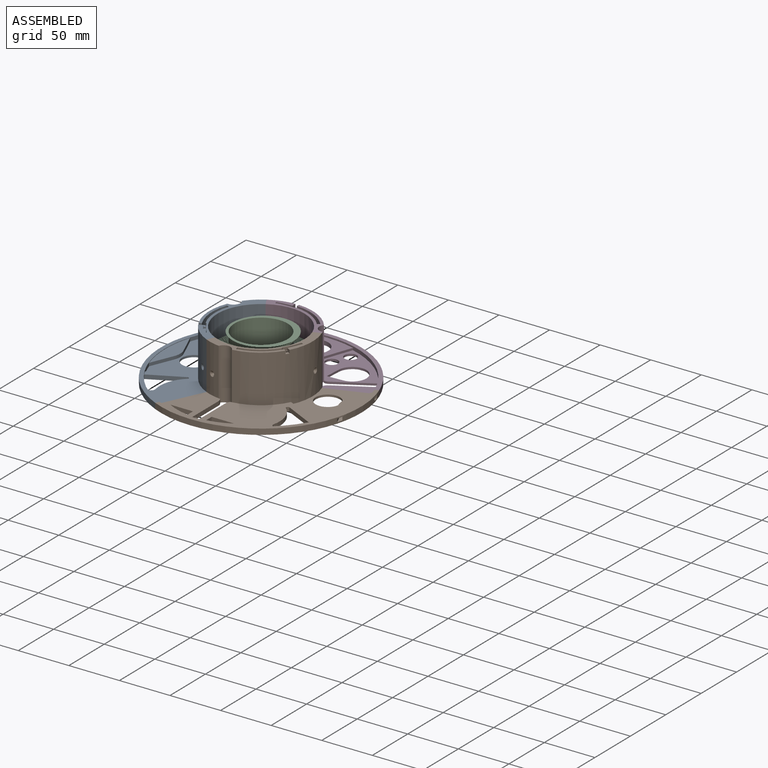
[diagram: assembled view]
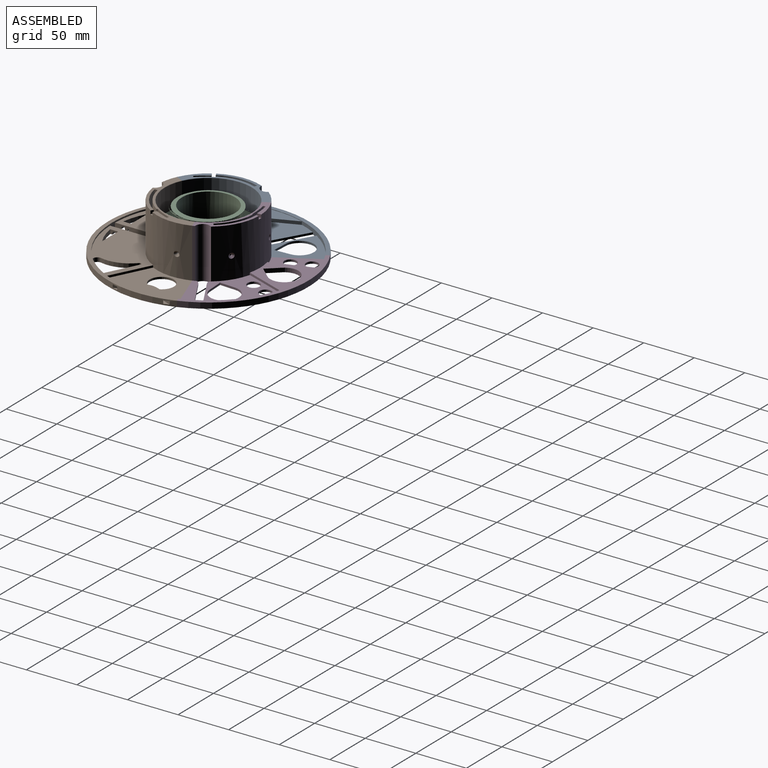
[diagram: assembled view, second angle]
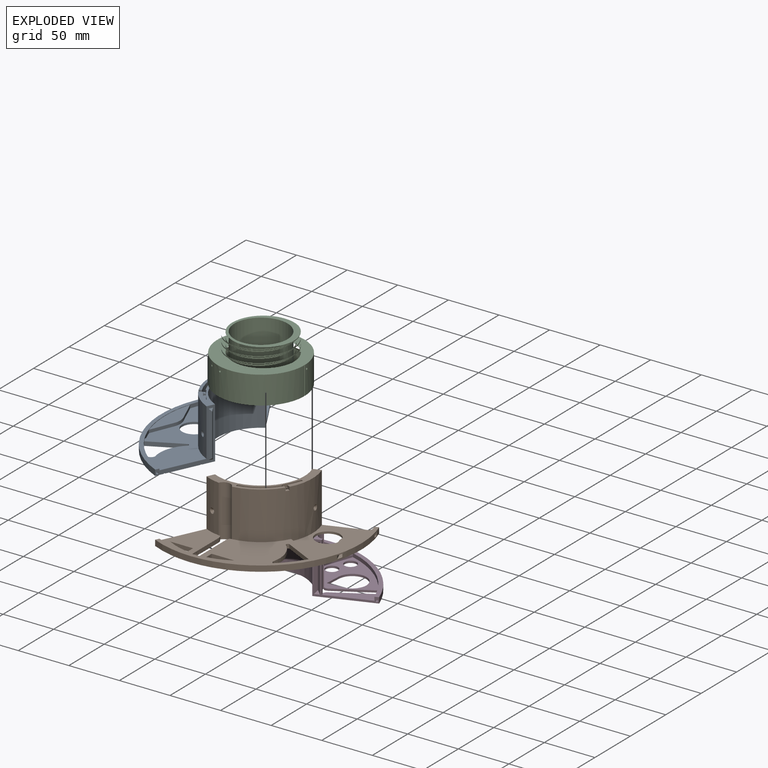
[diagram: exploded view]
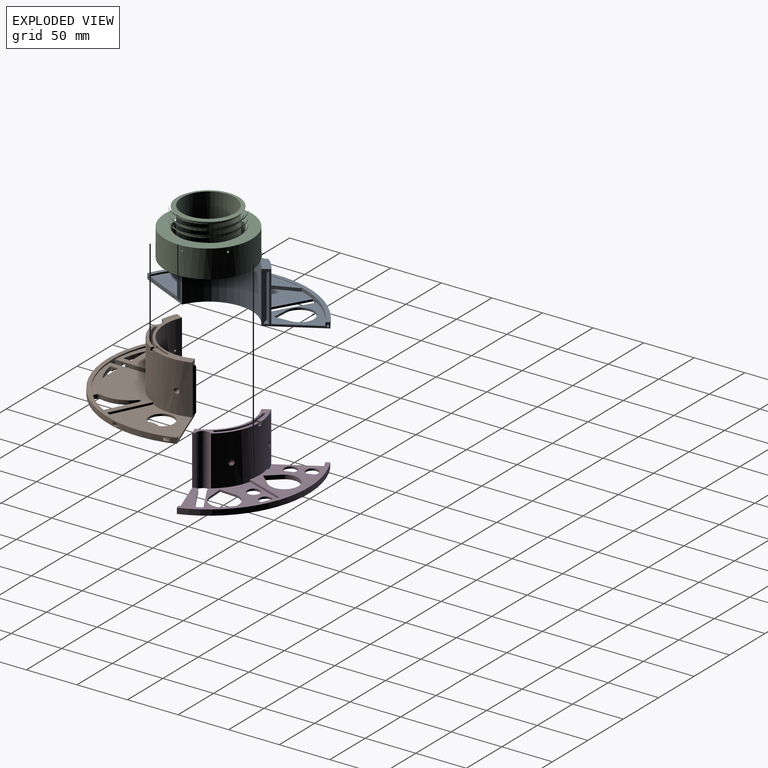
[diagram: exploded view, second angle]
ASSEMBLY  parts=4 mates=3
PART A: 93 faces, bbox 81.1x175.5x51 mm
  f0: plane 51x48.58mm, normal (0.87,0.5,0), area 289.8mm2, adj f2,f3,f5,f6,f7,f36,f37,f52
  f1: plane 51x50.84mm, normal (0.91,-0.42,0), area 419.7mm2, adj f2,f3,f4,f5,f6,f7,f8,f9
  f2: plane 90.39x32.78mm, normal (0,0,1), area 599.8mm2, adj f0,f1,f7,f38,f47,f53,f54,f55
  f3: plane 175.46x80.87mm, normal (0,0,-1), area 6143.5mm2, adj f0,f1,f5,f6,f11,f12,f16,f17
  f4: plane 30x22.11mm, normal (0,0,-1), area 451.7mm2, adj f1,f9,f10,f13,f14,f15
  f5: cylinder r=99mm len=175.46mm, axis (0,0,-1), area 1173.7mm2, adj f0,f1,f3,f37,f63,f65,f66,f68
  f6: cylinder r=42.9mm len=76.03mm, axis (0,0,-1), area 4735.7mm2, adj f0,f1,f3,f7,f71,f72
  f7: torus R=43.3mm, axis (0,0,1), area 40.7mm2, adj f0,f1,f2,f6
  f8: plane 32x23.58mm, normal (0,0,-1), area 60.1mm2, adj f1,f9,f10,f11,f12,f13,f14,f15
  f9: plane 6.12x2mm, normal (0,-1,0), area 12.2mm2, adj f1,f4,f8,f13
  f10: plane 20.11x2mm, normal (0,1,0), area 40.2mm2, adj f1,f4,f8,f15
  f11: plane 20.57x2mm, normal (0,-1,0), area 41.1mm2, adj f1,f3,f8,f16
  f12: plane 5.65x2mm, normal (0,1,0), area 11.3mm2, adj f1,f3,f8,f18
  f13: cylinder r=2mm len=2mm, axis (0,0,-1), area 6.3mm2, adj f4,f8,f9,f14
  f14: plane 26x2mm, normal (-1,0,0), area 52mm2, adj f4,f8,f13,f15
  f15: cylinder r=2mm len=2mm, axis (0,0,-1), area 6.3mm2, adj f4,f8,f10,f14
  f16: cylinder r=3mm len=3mm, axis (0,0,-1), area 9.4mm2, adj f3,f8,f11,f17
  f17: plane 26x2mm, normal (1,0,0), area 52mm2, adj f3,f8,f16,f18
  f18: cylinder r=3mm len=3mm, axis (0,0,-1), area 9.4mm2, adj f3,f8,f12,f17
  f19: cylinder r=17mm len=13.01mm, axis (0,0,-1), area 41.4mm2, adj f28,f29,f30,f32
  f20: plane 32.5x2.56mm, normal (-0.41,0.91,0), area 91mm2, adj f21,f26,f60,f61
  f21: plane 36.09x6.73mm, normal (0,0,1), area 100.6mm2, adj f20,f59,f60,f61
  f22: cylinder r=48.2mm len=20mm, axis (0,0,1), area 67.3mm2, adj f23,f24,f27,f58
  f23: plane 4.82x4.65mm, normal (0,0,1), area 12mm2, adj f22,f24,f57,f58
  f24: plane 20x3.27mm, normal (0.47,-0.88,0), area 74mm2, adj f22,f23,f26,f57
  f25: plane 13.18x10.58mm, normal (0,0,1), area 32.8mm2, adj f54,f55,f57,f58
  f26: plane 4.74x4.16mm, normal (0,0,1), area 9.6mm2, adj f20,f24,f56,f60,f61
  f27: plane 4.4x4.15mm, normal (0,0,1), area 9.7mm2, adj f22,f38,f58,f62
  f28: plane 22.49x9.32mm, normal (0.92,0.38,0), area 75.5mm2, adj f19,f29,f32,f36
  f29: plane 58x15.15mm, normal (0,0,1), area 518.3mm2, adj f19,f28,f30,f36
  f30: plane 22.49x9.32mm, normal (0.92,-0.38,0), area 75.5mm2, adj f19,f29,f32,f36
  f31: cylinder r=12mm len=24mm, axis (0,0,1), area 150.8mm2, adj f3,f32
  f32: plane 86.83x44.82mm, normal (0,0,1), area 2040.7mm2, adj f19,f28,f30,f31,f33,f34,f36,f38
  f33: plane 39.38x19.63mm, normal (-0.45,0.89,0), area 92.4mm2, adj f32,f35,f36,f38
  f34: cylinder r=6.76mm len=3.42mm, axis (0,0,1), area 9.2mm2, adj f3,f32,f43,f48
  f35: plane 63.47x63.34mm, normal (0,0,1), area 1608.6mm2, adj f1,f33,f36,f38,f39,f40,f41,f42
  f36: cylinder r=95mm len=168.37mm, axis (0,0,-1), area 555.7mm2, adj f0,f1,f3,f28,f29,f30,f32,f33
  f37: plane 175.46x58.85mm, normal (0,0,1), area 846.5mm2, adj f0,f1,f5,f36
  f38: cylinder r=51mm len=65.88mm, axis (0,0,-1), area 3726.6mm2, adj f1,f2,f27,f32,f33,f35,f47,f58
  f39: plane 31.59x15.75mm, normal (0.45,-0.89,0), area 144.7mm2, adj f3,f35,f36,f40
  f40: cylinder r=1.6mm len=4.1mm, axis (0,0,1), area 18.8mm2, adj f3,f35,f39,f41
  f41: cylinder r=32mm len=30.75mm, axis (0,0,1), area 138.7mm2, adj f3,f35,f40,f42
  f42: cylinder r=4mm len=6.75mm, axis (0,0,1), area 41.8mm2, adj f3,f35,f36,f41
  f43: plane 34.59x19.97mm, normal (0.5,0.87,0), area 79.9mm2, adj f3,f32,f34,f36
  f44: plane 34.59x19.97mm, normal (-0.5,-0.87,0), area 79.9mm2, adj f3,f36,f45,f52
  f45: cylinder r=6.76mm len=4.43mm, axis (0,0,1), area 9.2mm2, adj f3,f44,f46,f52
  f46: cylinder r=51mm len=2mm, axis (0,0,1), area 3mm2, adj f3,f45,f47,f52
  f47: cylinder r=7mm len=51mm, axis (0,0,1), area 850mm2, adj f2,f3,f38,f46,f48,f53
  f48: cylinder r=51mm len=2mm, axis (0,0,1), area 3mm2, adj f3,f32,f34,f47
  f49: plane 15.53x2mm, normal (-1,-0.05,0), area 31.1mm2, adj f3,f50,f51,f52
  f50: plane 15.53x2mm, normal (0.05,1,0), area 31.1mm2, adj f3,f49,f51,f52
  f51: cylinder r=14mm len=27.98mm, axis (0,0,1), area 129mm2, adj f3,f49,f50,f52
  f52: plane 54.97x52.65mm, normal (0,0,1), area 856.6mm2, adj f0,f36,f44,f45,f46,f49,f50,f51
  f53: cylinder r=51mm len=49mm, axis (0,0,-1), area 975mm2, adj f0,f2,f47,f52,f77,f78,f79,f80
  f54: plane 3.2x1.65mm, normal (-0.66,0.75,0), area 7mm2, adj f2,f25,f55,f57
  f55: cylinder r=90mm len=11.96mm, axis (0,0,1), area 47.8mm2, adj f2,f25,f54,f58
  f56: plane 3.2x1.25mm, normal (-0.34,-0.94,0), area 4.3mm2, adj f2,f26,f57,f60
  f57: cylinder r=78mm len=23.2mm, axis (0,0,1), area 118.7mm2, adj f2,f23,f24,f25,f54,f56,f58
  f58: plane 23.2x5.51mm, normal (-0.53,0.85,0), area 87.3mm2, adj f2,f22,f23,f25,f27,f38,f55,f57
  f59: plane 35.7x2.63mm, normal (-0.34,-0.94,0), area 100mm2, adj f2,f21,f60,f61
  f60: cylinder r=45.4mm len=35.96mm, axis (0,0,1), area 1251.7mm2, adj f2,f20,f21,f26,f56,f59
  f61: cylinder r=48.2mm len=39.11mm, axis (0,0,1), area 1332.2mm2, adj f2,f20,f21,f26,f59,f62
  f62: plane 3.2x2.47mm, normal (0.47,-0.88,0), area 9mm2, adj f2,f27,f38,f61
  f63: plane 23.38x9.68mm, normal (-0.92,0.38,0), area 81mm2, adj f5,f64,f69,f70
  f64: cylinder r=12.6mm len=9.64mm, axis (0,0,1), area 31.7mm2, adj f63,f65,f69,f70
  f65: plane 23.38x9.68mm, normal (-0.92,-0.38,0), area 81mm2, adj f5,f64,f69,f70
  f66: plane 19.28x7.99mm, normal (0.92,0.38,0), area 66.8mm2, adj f5,f67,f69,f70
  f67: cylinder r=9.2mm len=7.04mm, axis (0,0,1), area 23.1mm2, adj f66,f68,f69,f70
  f68: plane 19.28x7.99mm, normal (0.92,-0.38,0), area 66.8mm2, adj f5,f67,f69,f70
  f69: plane 56.41x12.09mm, normal (0,0,1), area 186.4mm2, adj f5,f63,f64,f65,f66,f67,f68
  f70: plane 56.41x12.09mm, normal (0,0,-1), area 186.4mm2, adj f5,f63,f64,f65,f66,f67,f68
  f71: cylinder r=1.05mm len=6.62mm, axis (-0.55,-0.83,0), area 42.9mm2, adj f6,f73,f74,f75,f76
  f72: cylinder r=1.05mm len=6.3mm, axis (0.66,-0.75,0), area 42.9mm2, adj f6,f77,f78,f79,f80
  f73: bspline ~2.74x2.62mm, area 6.5mm2, adj f38,f71,f74,f75
  f74: bspline ~3.08x2.62mm, area 6.5mm2, adj f38,f71,f73,f76
  f75: bspline ~2.74x2.62mm, area 6.5mm2, adj f38,f71,f73,f76
  f76: bspline ~3.08x2.62mm, area 6.5mm2, adj f38,f71,f74,f75
  f77: bspline ~3.02x2.62mm, area 6.5mm2, adj f53,f72,f78,f79
  f78: bspline ~2.91x2.62mm, area 6.5mm2, adj f53,f72,f77,f80
  f79: bspline ~3.02x2.62mm, area 6.5mm2, adj f53,f72,f77,f80
  f80: bspline ~2.91x2.62mm, area 6.5mm2, adj f53,f72,f78,f79
  f81: plane 46x2.85mm, normal (0.31,-0.95,0), area 131.4mm2, adj f1,f82,f83,f84
  f82: plane 46x2.78mm, normal (0.93,0.37,0), area 131.4mm2, adj f1,f81,f83,f84
  f83: plane 3.72x2.85mm, normal (0.64,-0.3,-0.71), area 6.4mm2, adj f1,f81,f82
  f84: plane 3.72x2.85mm, normal (0.64,-0.3,0.71), area 6.4mm2, adj f1,f81,f82
  f85: plane 46.85x3.51mm, normal (0.23,0.97,0), area 159.2mm2, adj f0,f86,f87,f88
  f86: plane 46.85x3.45mm, normal (0.96,-0.29,0), area 159.2mm2, adj f0,f85,f87,f88
  f87: plane 4.26x3.51mm, normal (0.61,0.35,0.71), area 9.2mm2, adj f0,f85,f86
  f88: plane 4.26x3.51mm, normal (0.61,0.35,-0.71), area 9.2mm2, adj f0,f85,f86
  f89: torus R=97mm, axis (0,0,1), area 62.8mm2, adj f0,f90
  f90: plane 2x1.62mm, normal (0.81,0.59,0), area 3.1mm2, adj f89
  f91: plane 2x1.72mm, normal (0.86,-0.51,0), area 3.1mm2, adj f92
  f92: torus R=97mm, axis (0,0,-1), area 62.8mm2, adj f1,f91
PART B: 109 faces, bbox 140.8x132.9x51 mm
  f0: plane 51x50.84mm, normal (-0.91,0.42,0), area 377.7mm2, adj f2,f3,f4,f5,f6,f7,f8,f9
  f1: plane 52.72x51mm, normal (-0.34,0.94,0), area 331.7mm2, adj f2,f4,f12,f20,f22,f23,f25,f26
  f2: cylinder r=42.9mm len=61.03mm, axis (0,0,-1), area 5114.9mm2, adj f0,f1,f12,f86,f87,f88
  f3: cylinder r=51mm len=46.9mm, axis (0,0,-1), area 723.8mm2, adj f0,f5,f17,f22,f89,f90,f91,f92
  f4: cylinder r=99mm len=140.84mm, axis (0,0,-1), area 1270.5mm2, adj f0,f1,f12,f25,f45,f47,f48,f50
  f5: plane 48.71x36.65mm, normal (0,0,1), area 1141.1mm2, adj f0,f3,f13,f14,f18,f26,f27,f36
  f6: plane 34.85x2mm, normal (0,1,0), area 69.7mm2, adj f0,f11,f12,f13
  f7: plane 17.08x2mm, normal (0,-1,0), area 34.2mm2, adj f0,f10,f12,f17
  f8: plane 19.25x2mm, normal (0,1,0), area 38.5mm2, adj f0,f10,f15,f27
  f9: plane 34.38x2mm, normal (0,-1,0), area 68.8mm2, adj f0,f11,f13,f15
  f10: plane 19.25x1mm, normal (0,0,-1), area 18.1mm2, adj f0,f7,f8,f17,f18,f27
  f11: plane 34.85x1mm, normal (0,0,-1), area 34.6mm2, adj f0,f6,f9,f13
  f12: plane 140.84x132.86mm, normal (0,0,-1), area 5511.7mm2, adj f0,f1,f2,f4,f6,f7,f13,f14
  f13: plane 39.94x4.1mm, normal (1,0,0), area 152.7mm2, adj f5,f6,f9,f11,f12,f15,f26,f27
  f14: plane 7.7x4.1mm, normal (-1,0,0), area 22.5mm2, adj f5,f12,f36,f37,f80,f81,f85
  f15: plane 34.38x30mm, normal (0,0,-1), area 820.2mm2, adj f0,f8,f9,f13,f27
  f16: cylinder r=51mm len=2.1mm, axis (0,0,1), area 3.2mm2, adj f17,f19,f40,f79
  f17: cylinder r=7mm len=51mm, axis (0,0,1), area 848.5mm2, adj f3,f7,f10,f12,f16,f18,f20,f22
  f18: cylinder r=51mm len=2.1mm, axis (0,0,1), area 3.2mm2, adj f5,f10,f17,f27
  f19: cylinder r=6.76mm len=4.25mm, axis (0,0,1), area 17.6mm2, adj f16,f24,f28,f40,f74,f79
  f20: cylinder r=51mm len=68.03mm, axis (0,0,-1), area 4347.8mm2, adj f1,f17,f22,f23,f39,f40,f58,f67
  f21: cylinder r=48.2mm len=35.7mm, axis (0,0,1), area 1332.2mm2, adj f22,f54,f56,f57,f66,f67
  f22: plane 72.55x68.03mm, normal (0,0,1), area 664.6mm2, adj f0,f1,f3,f17,f20,f21,f55,f56
  f23: plane 74.88x44.82mm, normal (0,0,1), area 1636.1mm2, adj f1,f20,f26,f38,f39,f41,f42,f43
  f24: plane 42.5x30mm, normal (0,0,-1), area 1271.9mm2, adj f19,f28,f70,f71,f72,f73,f74
  f25: plane 140.84x132.86mm, normal (0,0,1), area 914.2mm2, adj f0,f1,f4,f26
  f26: cylinder r=95mm len=135.15mm, axis (0,0,-1), area 456mm2, adj f0,f1,f5,f12,f13,f23,f25,f28
  f27: cylinder r=6.76mm len=4.25mm, axis (0,0,1), area 17.6mm2, adj f5,f8,f10,f13,f15,f18
  f28: plane 39.94x4.1mm, normal (-1,0,0), area 152.7mm2, adj f12,f19,f24,f26,f40,f69,f70,f79
  f29: plane 31.59x15.75mm, normal (-0.45,-0.89,0), area 144.7mm2, adj f12,f26,f30,f40
  f30: cylinder r=1.6mm len=4.1mm, axis (0,0,1), area 18.8mm2, adj f12,f29,f31,f40
  f31: cylinder r=32mm len=30.75mm, axis (0,0,1), area 138.7mm2, adj f12,f30,f32,f40
  f32: cylinder r=4mm len=6.75mm, axis (0,0,1), area 41.8mm2, adj f12,f26,f31,f40
  f33: plane 22.5x4.1mm, normal (0,-1,0), area 92.2mm2, adj f12,f34,f35,f40
  f34: plane 7.7x4.1mm, normal (1,0,0), area 22.5mm2, adj f12,f33,f35,f40,f82,f83,f84
  f35: cylinder r=63.7mm len=22.5mm, axis (0,0,1), area 98.1mm2, adj f12,f33,f34,f40
  f36: cylinder r=63.7mm len=22.5mm, axis (0,0,1), area 98.1mm2, adj f5,f12,f14,f37
  f37: plane 22.5x4.1mm, normal (0,-1,0), area 92.2mm2, adj f5,f12,f14,f36
  f38: cylinder r=12mm len=24mm, axis (0,0,1), area 150.8mm2, adj f12,f23
  f39: plane 39.38x19.63mm, normal (0.45,0.89,0), area 92.4mm2, adj f20,f23,f26,f40
  f40: plane 81.52x72.18mm, normal (0,0,1), area 2749.7mm2, adj f16,f19,f20,f26,f28,f29,f30,f31
  f41: plane 22.49x9.32mm, normal (-0.92,0.38,0), area 75.5mm2, adj f23,f26,f42,f44
  f42: cylinder r=17mm len=13.01mm, axis (0,0,-1), area 41.4mm2, adj f23,f41,f43,f44
  f43: plane 22.49x9.32mm, normal (-0.92,-0.38,0), area 75.5mm2, adj f23,f26,f42,f44
  f44: plane 58x15.15mm, normal (0,0,1), area 518.3mm2, adj f26,f41,f42,f43
  f45: plane 23.38x9.68mm, normal (0.92,-0.38,0), area 81mm2, adj f4,f46,f51,f52
  f46: cylinder r=12.6mm len=9.64mm, axis (0,0,1), area 31.7mm2, adj f45,f47,f51,f52
  f47: plane 23.38x9.68mm, normal (0.92,0.38,0), area 81mm2, adj f4,f46,f51,f52
  f48: plane 19.28x7.99mm, normal (-0.92,-0.38,0), area 66.8mm2, adj f4,f49,f51,f52
  f49: cylinder r=9.2mm len=7.04mm, axis (0,0,1), area 23.1mm2, adj f48,f50,f51,f52
  f50: plane 19.28x7.99mm, normal (-0.92,0.38,0), area 66.8mm2, adj f4,f49,f51,f52
  f51: plane 56.41x12.09mm, normal (0,0,1), area 186.4mm2, adj f4,f45,f46,f47,f48,f49,f50
  f52: plane 56.41x12.09mm, normal (0,0,-1), area 186.4mm2, adj f4,f45,f46,f47,f48,f49,f50
  f53: cylinder r=48.2mm len=20mm, axis (0,0,1), area 67.3mm2, adj f58,f60,f61,f68
  f54: plane 32.5x2.27mm, normal (-0.59,-0.81,0), area 91mm2, adj f21,f55,f57,f66
  f55: cylinder r=45.4mm len=35.7mm, axis (0,0,1), area 1251.7mm2, adj f22,f54,f56,f57,f65,f66
  f56: plane 35.7x2.76mm, normal (0.98,0.17,0), area 100mm2, adj f21,f22,f55,f57
  f57: plane 31.11x20.78mm, normal (0,0,1), area 100.6mm2, adj f21,f54,f55,f56
  f58: plane 23.2x5.73mm, normal (-0.47,-0.88,0), area 87.3mm2, adj f20,f22,f53,f59,f61,f62,f64,f68
  f59: cylinder r=78mm len=23.2mm, axis (0,0,1), area 118.7mm2, adj f22,f58,f60,f61,f63,f64,f65
  f60: plane 20x3.14mm, normal (0.53,0.85,0), area 74mm2, adj f53,f59,f61,f66
  f61: plane 4.82x4.65mm, normal (0,0,1), area 12mm2, adj f53,f58,f59,f60
  f62: cylinder r=90mm len=13.72mm, axis (0,0,1), area 47.8mm2, adj f22,f58,f63,f64
  f63: plane 3.2x2.09mm, normal (-0.32,-0.95,0), area 7mm2, adj f22,f59,f62,f64
  f64: plane 14.42x7.92mm, normal (0,0,1), area 32.8mm2, adj f58,f59,f62,f63
  f65: plane 3.2x1.31mm, normal (0.98,0.17,0), area 4.3mm2, adj f22,f55,f59,f66
  f66: plane 4.75x4.15mm, normal (0,0,1), area 9.6mm2, adj f21,f54,f55,f60,f65
  f67: plane 3.2x2.37mm, normal (0.53,0.85,0), area 9mm2, adj f20,f21,f22,f68
  f68: plane 4.4x4.15mm, normal (0,0,1), area 9.7mm2, adj f20,f53,f58,f67
  f69: plane 40.5x2mm, normal (0,1,0), area 81mm2, adj f12,f28,f78,f79
  f70: plane 40.5x2mm, normal (0,-1,0), area 81mm2, adj f24,f28,f71,f79
  f71: cylinder r=2mm len=2mm, axis (0,0,-1), area 6.3mm2, adj f24,f70,f72,f79
  f72: plane 26x2mm, normal (1,0,0), area 52mm2, adj f24,f71,f73,f79
  f73: cylinder r=2mm len=2mm, axis (0,0,-1), area 6.3mm2, adj f24,f72,f74,f79
  f74: plane 39.35x2mm, normal (0,1,0), area 78.7mm2, adj f19,f24,f73,f79
  f75: plane 37.65x2mm, normal (0,-1,0), area 75.3mm2, adj f12,f17,f76,f79
  f76: cylinder r=3mm len=3mm, axis (0,0,-1), area 9.4mm2, adj f12,f75,f77,f79
  f77: plane 26x2mm, normal (-1,0,0), area 52mm2, adj f12,f76,f78,f79
  f78: cylinder r=3mm len=3mm, axis (0,0,-1), area 9.4mm2, adj f12,f69,f77,f79
  f79: plane 43.5x32mm, normal (0,0,-1), area 112.8mm2, adj f16,f17,f19,f28,f69,f70,f71,f72
  f80: plane 5.7x1.1mm, normal (0,1,0), area 6.3mm2, adj f12,f13,f14,f85
  f81: plane 5.7x1.1mm, normal (0,-1,0), area 6.3mm2, adj f12,f13,f14,f85
  f82: plane 5.7x1.1mm, normal (0,1,0), area 6.3mm2, adj f12,f28,f34,f84
  f83: plane 5.7x1.1mm, normal (0,-1,0), area 6.3mm2, adj f12,f28,f34,f84
  f84: cylinder r=1.8mm len=5.7mm, axis (-1,0,0), area 32.2mm2, adj f28,f34,f82,f83
  f85: cylinder r=1.8mm len=5.7mm, axis (-1,0,0), area 32.2mm2, adj f13,f14,f80,f81
  f86: torus R=43.3mm, axis (0,0,1), area 44mm2, adj f0,f1,f2,f22
  f87: cylinder r=1.05mm len=6.87mm, axis (-0.28,-0.96,0), area 42.9mm2, adj f2,f89,f90,f91,f92
  f88: cylinder r=1.05mm len=6.69mm, axis (-1,-0.08,0), area 42.9mm2, adj f2,f93,f94,f95,f96
  f89: bspline ~2.62x2.62mm, area 6.5mm2, adj f3,f87,f90,f91
  f90: bspline ~3.01x2.62mm, area 6.5mm2, adj f3,f87,f89,f92
  f91: bspline ~2.62x2.62mm, area 6.5mm2, adj f3,f87,f89,f92
  f92: bspline ~3.01x2.62mm, area 6.5mm2, adj f3,f87,f90,f91
  f93: bspline ~2.82x2.62mm, area 6.5mm2, adj f20,f88,f94,f95
  f94: bspline ~2.7x2.62mm, area 6.5mm2, adj f20,f88,f93,f96
  f95: bspline ~2.82x2.62mm, area 6.5mm2, adj f20,f88,f93,f96
  f96: bspline ~2.7x2.62mm, area 6.5mm2, adj f20,f88,f94,f95
  f97: plane 46x2.76mm, normal (-0.92,0.39,0), area 131.4mm2, adj f1,f98,f99,f100
  f98: plane 46x2.68mm, normal (0.45,0.89,0), area 131.4mm2, adj f1,f97,f99,f100
  f99: plane 3.85x2.76mm, normal (-0.24,0.66,-0.71), area 6.4mm2, adj f1,f97,f98
  f100: plane 3.85x2.76mm, normal (-0.24,0.66,0.71), area 6.4mm2, adj f1,f97,f98
  f101: plane 46.85x3.42mm, normal (-0.31,0.95,0), area 159.2mm2, adj f0,f102,f103,f104
  f102: plane 46.85x3.34mm, normal (-0.93,-0.37,0), area 159.2mm2, adj f0,f101,f103,f104
  f103: plane 4.46x3.42mm, normal (-0.64,0.3,0.71), area 9.2mm2, adj f0,f101,f102
  f104: plane 4.46x3.42mm, normal (-0.64,0.3,-0.71), area 9.2mm2, adj f0,f101,f102
  f105: torus R=97mm, axis (0,0,-1), area 62.8mm2, adj f0,f106
  f106: plane 2x1.89mm, normal (-0.94,0.33,0), area 3.1mm2, adj f105
  f107: plane 2x1.92mm, normal (-0.28,0.96,0), area 3.1mm2, adj f108
  f108: torus R=97mm, axis (0,0,1), area 37.7mm2, adj f1,f107
PART C: 40 faces, bbox 89.5x89.5x46.4 mm
  f0: plane 85.81x85.79mm, normal (0,0,-1), area 409.3mm2, adj f2,f3,f13,f32,f33,f34,f35,f36
  f1: plane 85.81x85.79mm, normal (0,0,1), area 2523.5mm2, adj f2,f3,f5,f32,f33,f34,f35,f36
  f2: cylinder r=42.9mm len=85.78mm, axis (0,0,-1), area 3662.9mm2, adj f0,f1,f28,f29,f30,f31,f37,f39
  f3: cylinder r=42.9mm len=85.78mm, axis (0,0,-1), area 3667.3mm2, adj f0,f1,f26,f27,f36,f38
  f4: plane 61.04x60.93mm, normal (0,0,1), area 753.4mm2, adj f8,f9,f19
  f5: cylinder r=32.2mm len=64.4mm, axis (0,0,-1), area 94.6mm2, adj f1,f6,f18
  f6: cylinder r=32.2mm len=64.4mm, axis (0,0,-1), area 198.9mm2, adj f5,f7
  f7: cylinder r=32.2mm len=64.4mm, axis (0,0,-1), area 199mm2, adj f6,f8
  f8: cylinder r=32.2mm len=64.4mm, axis (0,0,-1), area 113.8mm2, adj f4,f7
  f9: cylinder r=26.25mm len=52.5mm, axis (0,0,-1), area 7405.5mm2, adj f4,f16
  f10: plane 59.5x59.5mm, normal (0,0,-1), area 361.3mm2, adj f16,f17
  f11: cylinder r=31.25mm len=62.5mm, axis (0,0,-1), area 2788.2mm2, adj f14,f17
  f12: plane 76.1x76.1mm, normal (0,0,-1), area 798.3mm2, adj f14,f15
  f13: cylinder r=41.35mm len=82.7mm, axis (0,0,-1), area 4079mm2, adj f0,f15
  f14: torus R=34.55mm, axis (0,0,-1), area 1056.9mm2, adj f11,f12
  f15: torus R=38.05mm, axis (0,0,-1), area 1307.7mm2, adj f12,f13
  f16: torus R=27.75mm, axis (0,0,-1), area 396.7mm2, adj f9,f10
  f17: torus R=29.75mm, axis (0,0,-1), area 454.6mm2, adj f10,f11
  f18: plane 64.4x64.37mm, normal (0,0,1), area 350.3mm2, adj f5,f19
  f19: cylinder r=28.8mm len=57.6mm, axis (0,0,1), area 743mm2, adj f4,f18
  f20: plane 2.1x1.75mm, normal (-0.55,-0.83,0), area 3.5mm2, adj f27
  f21: plane 2.1x1.58mm, normal (-0.66,0.75,0), area 3.5mm2, adj f28
  f22: plane 2.1x1.95mm, normal (-0.37,0.93,0), area 3.5mm2, adj f29
  f23: plane 2.1x1.75mm, normal (0.55,0.83,0), area 3.5mm2, adj f30
  f24: plane 2.1x2.02mm, normal (-0.28,-0.96,0), area 3.5mm2, adj f26
  f25: plane 2.1x2.09mm, normal (1,0.08,0), area 3.5mm2, adj f31
  f26: cylinder r=1.05mm len=9.13mm, axis (-0.28,-0.96,0), area 58.7mm2, adj f3,f24
  f27: cylinder r=1.05mm len=8.58mm, axis (-0.55,-0.83,0), area 58.7mm2, adj f3,f20
  f28: cylinder r=1.05mm len=8.07mm, axis (0.66,-0.75,0), area 58.7mm2, adj f2,f21
  f29: cylinder r=1.05mm len=9.05mm, axis (0.37,-0.93,0), area 58.7mm2, adj f2,f22
  f30: cylinder r=1.05mm len=8.58mm, axis (-0.55,-0.83,0), area 58.7mm2, adj f2,f23
  f31: cylinder r=1.05mm len=9.04mm, axis (-1,-0.08,0), area 58.7mm2, adj f2,f25
  f32: cylinder r=0.5mm len=27.6mm, axis (0,0,-1), area 14.3mm2, adj f0,f1,f33,f37
  f33: cylinder r=0.5mm len=27.6mm, axis (0,0,1), area 14.3mm2, adj f0,f1,f32,f36
  f34: cylinder r=0.5mm len=27.6mm, axis (0,0,1), area 14.3mm2, adj f0,f1,f35,f39
  f35: cylinder r=0.5mm len=27.6mm, axis (0,0,-1), area 14.3mm2, adj f0,f1,f34,f38
  f36: cylinder r=0.5mm len=27.6mm, axis (0,0,1), area 14.6mm2, adj f0,f1,f3,f33
  f37: cylinder r=0.5mm len=27.6mm, axis (0,0,1), area 14.6mm2, adj f0,f1,f2,f32
  f38: cylinder r=0.5mm len=27.6mm, axis (0,0,1), area 14.6mm2, adj f0,f1,f3,f35
  f39: cylinder r=0.5mm len=27.6mm, axis (0,0,1), area 14.6mm2, adj f0,f1,f2,f34
PART D: 105 faces, bbox 142.5x84.3x51 mm
  f0: plane 52.72x51mm, normal (0.34,-0.94,0), area 289.8mm2, adj f1,f2,f3,f4,f5,f6,f7,f8
  f1: cylinder r=42.9mm len=61.76mm, axis (0,0,-1), area 3787.7mm2, adj f0,f7,f8,f81,f83,f84
  f2: cylinder r=51mm len=49mm, axis (0,0,-1), area 116.8mm2, adj f0,f4,f11,f17
  f3: cylinder r=99mm len=142.53mm, axis (0,0,-1), area 967.6mm2, adj f0,f5,f8,f81
  f4: plane 42.82x26.99mm, normal (0,0,1), area 404.6mm2, adj f0,f2,f6,f18,f19,f20
  f5: plane 142.53x66.51mm, normal (0,0,1), area 677.2mm2, adj f0,f3,f6,f81
  f6: cylinder r=95mm len=136.77mm, axis (0,0,-1), area 495.5mm2, adj f0,f4,f5,f8,f12,f13,f14,f20
  f7: torus R=43.3mm, axis (0,0,1), area 32.6mm2, adj f0,f1,f11,f81
  f8: plane 142.53x84.33mm, normal (0,0,-1), area 4702.9mm2, adj f0,f1,f3,f6,f14,f15,f16,f17
  f9: cylinder r=51mm len=66.06mm, axis (0,0,-1), area 3513.9mm2, adj f11,f12,f13,f17,f31,f32,f33,f39
  f10: cylinder r=48.2mm len=35.7mm, axis (0,0,1), area 1330mm2, adj f11,f34,f36,f38,f47,f48,f82
  f11: plane 73.42x36.22mm, normal (0,0,1), area 437.9mm2, adj f0,f2,f7,f9,f10,f17,f34,f37
  f12: plane 68.1x61.43mm, normal (0,0,1), area 1433mm2, adj f6,f9,f14,f15,f16,f24,f25,f26
  f13: plane 46.89x35.13mm, normal (0,0,1), area 576.4mm2, adj f6,f9,f28,f29,f31,f81
  f14: plane 34.59x19.97mm, normal (0.5,-0.87,0), area 79.9mm2, adj f6,f8,f12,f15
  f15: cylinder r=6.76mm len=4.43mm, axis (0,0,1), area 9.2mm2, adj f8,f12,f14,f16
  f16: cylinder r=51mm len=2mm, axis (0,0,1), area 3mm2, adj f8,f12,f15,f17
  f17: cylinder r=7mm len=51mm, axis (0,0,1), area 850mm2, adj f2,f8,f9,f11,f16,f18
  f18: cylinder r=51mm len=2mm, axis (0,0,1), area 3mm2, adj f4,f8,f17,f19
  f19: cylinder r=6.76mm len=3.42mm, axis (0,0,1), area 9.2mm2, adj f4,f8,f18,f20
  f20: plane 34.59x19.97mm, normal (-0.5,0.87,0), area 79.9mm2, adj f4,f6,f8,f19
  f21: cylinder r=14mm len=28mm, axis (0,0,1), area 264.5mm2, adj f8,f22,f23,f33
  f22: plane 11.56x10.4mm, normal (0.74,0.67,0), area 63.7mm2, adj f8,f21,f23,f33
  f23: plane 11.56x10.4mm, normal (-0.74,0.67,0), area 63.7mm2, adj f8,f21,f22,f33
  f24: cylinder r=14mm len=27.98mm, axis (0,0,1), area 129mm2, adj f8,f12,f25,f26
  f25: plane 15.53x2mm, normal (1,-0.05,0), area 31.1mm2, adj f8,f12,f24,f26
  f26: plane 15.53x2mm, normal (-0.05,1,0), area 31.1mm2, adj f8,f12,f24,f25
  f27: cylinder r=6mm len=12mm, axis (0,0,1), area 75.4mm2, adj f8,f12
  f28: cylinder r=6mm len=12mm, axis (0,0,1), area 75.4mm2, adj f8,f13
  f29: cylinder r=6mm len=12mm, axis (0,0,1), area 75.4mm2, adj f8,f13
  f30: cylinder r=6mm len=12mm, axis (0,0,1), area 75.4mm2, adj f8,f12
  f31: plane 41.58x14.72mm, normal (-0.94,-0.33,0), area 92.6mm2, adj f6,f9,f13,f33
  f32: plane 41.58x14.72mm, normal (0.94,-0.33,0), area 92.6mm2, adj f6,f9,f12,f33
  f33: plane 54.18x45.52mm, normal (0,0,1), area 1089.1mm2, adj f6,f9,f21,f22,f23,f31,f32
  f34: plane 35.7x2.15mm, normal (-0.64,0.77,0), area 100mm2, adj f10,f11,f37,f38
  f35: cylinder r=48.2mm len=20mm, axis (0,0,1), area 67.3mm2, adj f39,f41,f42,f49
  f36: plane 32.5x2.78mm, normal (0.99,-0.1,0), area 91mm2, adj f10,f37,f38,f47
  f37: cylinder r=45.4mm len=35.7mm, axis (0,0,1), area 1249.4mm2, adj f11,f34,f36,f38,f46,f47,f84
  f38: plane 32.18x18.75mm, normal (0,0,1), area 100.6mm2, adj f10,f34,f36,f37
  f39: plane 23.2x6.49mm, normal (1,0.03,0), area 87.3mm2, adj f9,f11,f35,f40,f42,f43,f45,f49
  f40: cylinder r=78mm len=23.2mm, axis (0,0,1), area 118.7mm2, adj f11,f39,f41,f42,f44,f45,f46
  f41: plane 20x3.7mm, normal (-1,0.03,0), area 74mm2, adj f35,f40,f42,f47
  f42: plane 3.73x3.36mm, normal (0,0,1), area 12mm2, adj f35,f39,f40,f41
  f43: cylinder r=90mm len=14.83mm, axis (0,0,1), area 47.8mm2, adj f11,f39,f44,f45
  f44: plane 3.2x2.16mm, normal (0.98,0.2,0), area 7mm2, adj f11,f40,f43,f45
  f45: plane 14.91x3.91mm, normal (0,0,1), area 32.8mm2, adj f39,f40,f43,f44
  f46: plane 3.2x1.02mm, normal (-0.64,0.77,0), area 4.3mm2, adj f11,f37,f40,f47
  f47: plane 3.7x3.49mm, normal (0,0,1), area 9.6mm2, adj f10,f36,f37,f41,f46
  f48: plane 3.2x2.8mm, normal (-1,0.03,0), area 9mm2, adj f9,f10,f11,f49
  f49: plane 3.56x2.83mm, normal (0,0,1), area 9.7mm2, adj f9,f35,f39,f48
  f50: extruded ~1.06x0.75mm, area 0.8mm2, adj f8,f51,f59,f60
  f51: extruded ~1.34x0.75mm, area 1mm2, adj f8,f50,f52,f60
  f52: plane 6.49x2.05mm, normal (-0.95,0.3,0), area 5.1mm2, adj f8,f51,f53,f60
  f53: plane 2.33x0.75mm, normal (0,1,0), area 1.8mm2, adj f8,f52,f54,f60
  f54: plane 10.91x3.7mm, normal (0.95,-0.32,0), area 8.6mm2, adj f8,f53,f55,f60
  f55: plane 2.52x0.75mm, normal (0,-1,0), area 1.9mm2, adj f8,f54,f56,f60
  f56: plane 10.91x3.71mm, normal (-0.95,-0.32,0), area 8.6mm2, adj f8,f55,f57,f60
  f57: plane 2.33x0.75mm, normal (0,1,0), area 1.8mm2, adj f8,f56,f58,f60
  f58: plane 6.49x2.07mm, normal (0.95,0.3,0), area 5.1mm2, adj f8,f57,f59,f60
  f59: extruded ~2.4x0.75mm, area 1.9mm2, adj f8,f50,f58,f60
  f60: plane 10.91x9.93mm, normal (0,0,-1), area 45.9mm2, adj f50,f51,f52,f53,f54,f55,f56,f57
  f61: plane 6.86x0.75mm, normal (-1,0,0), area 5.1mm2, adj f8,f62,f78,f79
  f62: plane 2.12x0.75mm, normal (0,1,0), area 1.6mm2, adj f8,f61,f63,f79
  f63: plane 7.04x4.78mm, normal (0.83,0.56,0), area 6.4mm2, adj f8,f62,f64,f79
  f64: plane 1.6x0.75mm, normal (1,0,0), area 1.2mm2, adj f8,f63,f65,f79
  f65: plane 4.66x0.75mm, normal (0,-1,0), area 3.5mm2, adj f8,f64,f66,f79
  f66: plane 2.26x0.75mm, normal (1,0,0), area 1.7mm2, adj f8,f65,f67,f79
  f67: plane 2.25x0.75mm, normal (0,-1,0), area 1.7mm2, adj f8,f66,f68,f79
  f68: plane 2.26x0.75mm, normal (-1,0,0), area 1.7mm2, adj f8,f67,f69,f79
  f69: plane 1.31x0.75mm, normal (0,-1,0), area 1mm2, adj f8,f68,f70,f79
  f70: plane 1.79x0.75mm, normal (-1,0,0), area 1.3mm2, adj f8,f69,f78,f79
  f71: extruded ~1.19x0.75mm, area 1mm2, adj f72,f77,f79,f80
  f72: plane 0.75x0.06mm, normal (0,-1,0), area 0mm2, adj f71,f73,f79,f80
  f73: extruded ~1.02x0.75mm, area 0.8mm2, adj f72,f74,f79,f80
  f74: extruded ~1.34x0.75mm, area 1mm2, adj f73,f75,f79,f80
  f75: plane 1.85x0.75mm, normal (1,0,0), area 1.4mm2, adj f74,f76,f79,f80
  f76: plane 2.63x0.75mm, normal (0,1,0), area 2mm2, adj f75,f77,f79,f80
  f77: plane 3.02x2mm, normal (-0.83,-0.55,0), area 2.7mm2, adj f71,f76,f79,f80
  f78: plane 1.31x0.75mm, normal (0,1,0), area 1mm2, adj f8,f61,f70,f79
  f79: plane 10.91x8.22mm, normal (0,0,-1), area 45mm2, adj f61,f62,f63,f64,f65,f66,f67,f68
  f80: plane 4.22x2.72mm, normal (0,0,-1), area 5.3mm2, adj f71,f72,f73,f74,f75,f76,f77
  f81: plane 51x48.58mm, normal (-0.87,-0.5,0), area 331.7mm2, adj f1,f3,f5,f6,f7,f8,f9,f11
  f82: cylinder r=1.05mm len=2.44mm, axis (-0.55,-0.83,0), area 7.9mm2, adj f10,f89,f90,f91,f92
  f83: cylinder r=1.05mm len=6.86mm, axis (0.37,-0.93,0), area 42.9mm2, adj f1,f85,f86,f87,f88
  f84: cylinder r=1.05mm len=3.25mm, axis (0.55,0.83,0), area 16.5mm2, adj f1,f37
  f85: bspline ~3.06x2.62mm, area 6.5mm2, adj f9,f83,f86,f87
  f86: bspline ~2.62x2.54mm, area 6.5mm2, adj f9,f83,f85,f88
  f87: bspline ~3.06x2.62mm, area 6.5mm2, adj f9,f83,f85,f88
  f88: bspline ~2.62x2.54mm, area 6.5mm2, adj f9,f83,f86,f87
  f89: bspline ~2.74x2.62mm, area 6.5mm2, adj f9,f82,f90,f91
  f90: bspline ~3.08x2.62mm, area 6.5mm2, adj f9,f82,f89,f92
  f91: bspline ~2.74x2.62mm, area 6.5mm2, adj f9,f82,f89,f92
  f92: bspline ~3.08x2.62mm, area 6.5mm2, adj f9,f82,f90,f91
  f93: plane 46x2.92mm, normal (-0.23,-0.97,0), area 131.4mm2, adj f81,f94,f95,f96
  f94: plane 46x2.87mm, normal (-0.96,0.29,0), area 131.4mm2, adj f81,f93,f95,f96
  f95: plane 3.55x2.92mm, normal (-0.61,-0.35,-0.71), area 6.4mm2, adj f81,f93,f94
  f96: plane 3.55x2.92mm, normal (-0.61,-0.35,0.71), area 6.4mm2, adj f81,f93,f94
  f97: plane 46.85x3.31mm, normal (0.92,-0.39,0), area 159.2mm2, adj f0,f98,f99,f100
  f98: plane 46.85x3.21mm, normal (-0.45,-0.89,0), area 159.2mm2, adj f0,f97,f99,f100
  f99: plane 4.63x3.31mm, normal (0.24,-0.66,0.71), area 9.2mm2, adj f0,f97,f98
  f100: plane 4.63x3.31mm, normal (0.24,-0.66,-0.71), area 9.2mm2, adj f0,f97,f98
  f101: plane 2x1.83mm, normal (-0.91,-0.41,0), area 3.1mm2, adj f102
  f102: torus R=97mm, axis (0,0,1), area 62.8mm2, adj f81,f101
  f103: torus R=97mm, axis (0,0,1), area 37.7mm2, adj f0,f104
  f104: plane 2x1.83mm, normal (0.4,-0.92,0), area 3.1mm2, adj f103
PLACE A t=(0,0,23.3)mm
PLACE B t=(0,0,23.3)mm
PLACE C t=(0,0,23.3)mm
PLACE D t=(0,0,23.3)mm
MATE fastened A.f6 <-> C.f5  axis (0,0,-1) through (0,0,0)mm
MATE fastened B.f86 <-> C.f5  axis (0,0,-1) through (0,0,0)mm
MATE fastened D.f7 <-> C.f5  axis (0,0,-1) through (0,0,0)mm
